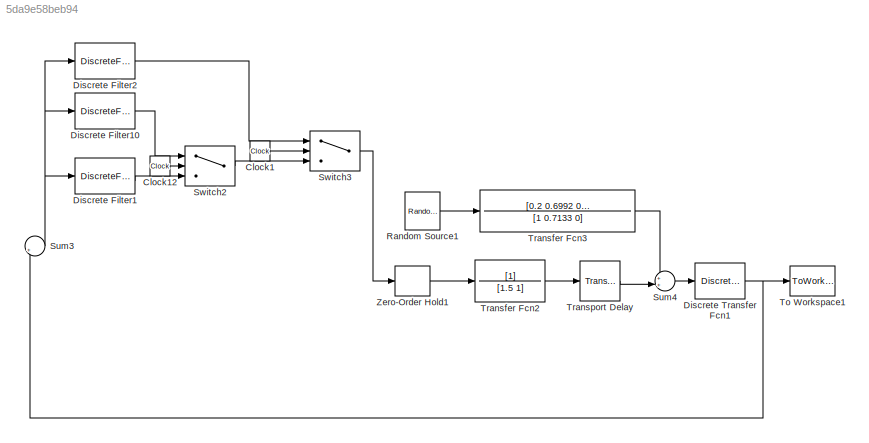
MODEL slx_5da9e58beb94
KIND model
CONFIG AbsTol = auto
CONFIG EnableMultiTasking = off
CONFIG FixedStep = auto
CONFIG MaxStep = auto
CONFIG MinStep = auto
CONFIG RelTol = 1e-3
CONFIG SampleTimeConstraint = Unconstrained
CONFIG SolverName = VariableStepAuto
CONFIG StartTime = 0.0
CONFIG StopTime = 20000
BLOCK [Clock] Clock1
BLOCK [Clock] Clock12
BLOCK [DiscreteFilter] Discrete Filter1
  Denominator = [1 -1]
  InputPortMap = u0
  Numerator = [0.4726 -0.5542 0.1466]*0.5
  Ports = [1, 1]
  SampleTime = Ts
BLOCK [DiscreteFilter] Discrete Filter10
  Denominator = [1 -1]
  InputPortMap = u0
  Numerator = [0.4726 -0.5542 0.1466]
  Ports = [1, 1]
  SampleTime = Ts
BLOCK [DiscreteFilter] Discrete Filter2
  Denominator = [1 -1]
  InputPortMap = u0
  Numerator = [2.506 -4.4 2]
  Ports = [1, 1]
  SampleTime = Ts
BLOCK [DiscreteTransferFcn] Discrete Transfer Fcn1
  Denominator = [1]
  InputPortMap = u0
  Ports = [1, 1]
  SampleTime = Ts
BLOCK [Reference] Random Source1  REF=dspsrcs4/Random
Source
  Ports = [0, 1]
  SourceBlock = dspsrcs4/Random\nSource
  SourceProductBaseCode = DS
  SourceType = Random Source
  UserDataPersistent = on
BLOCK [Sum] Sum3
  Inputs = |+-
  Ports = [2, 1]
BLOCK [Sum] Sum4
  Inputs = ++|
  Ports = [2, 1]
BLOCK [Switch] Switch2
  Criteria = u2 > Threshold
  InputSameDT = off
  SaturateOnIntegerOverflow = off
  Threshold = 3750
BLOCK [Switch] Switch3
  Criteria = u2 > Threshold
  InputSameDT = off
  SaturateOnIntegerOverflow = off
  Threshold = 7500
BLOCK [ToWorkspace] To Workspace1
  FixptAsFi = on
  MaxDataPoints = inf
  Ports = [1]
  SampleTime = Ts
  VariableName = y44
BLOCK [TransferFcn] Transfer Fcn2
  Denominator = [1.5 1]
BLOCK [TransferFcn] Transfer Fcn3
  Denominator = [1 0.7133 0]
  Numerator = [0.2 0.6992 0.9512]
BLOCK [TransportDelay] Transport Delay
  DelayTime = 5
  Ports = [1, 1]
BLOCK [ZeroOrderHold] Zero-Order Hold1
  SampleTime = Ts
LINE Clock12:1 -> Switch2:2
LINE Clock1:1 -> Switch3:2
LINE Discrete Filter10:1 -> Switch2:1
LINE Discrete Filter1:1 -> Switch2:3
LINE Discrete Filter2:1 -> Switch3:1
NET Discrete Transfer Fcn1:1 -> Sum3:2, To Workspace1:1
LINE Random Source1:1 -> Transfer Fcn3:1
NET Sum3:1 -> Discrete Filter10:1, Discrete Filter1:1, Discrete Filter2:1
LINE Sum4:1 -> Discrete Transfer Fcn1:1
LINE Switch2:1 -> Switch3:3
LINE Switch3:1 -> Zero-Order Hold1:1
LINE Transfer Fcn2:1 -> Transport Delay:1
LINE Transfer Fcn3:1 -> Sum4:1
LINE Transport Delay:1 -> Sum4:2
LINE Zero-Order Hold1:1 -> Transfer Fcn2:1
note: NET lines group one-source signal fan-out (src -> all destinations, sorted); 1:1 wires keep LINE
